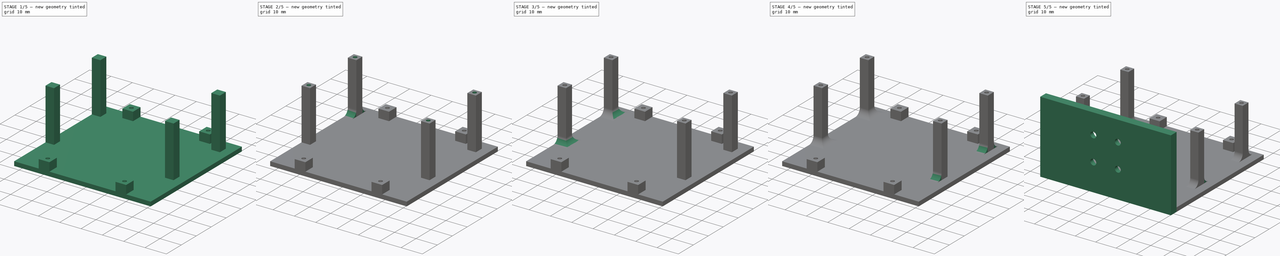
[diagram: build sequence overview — one tinted view per stage of 5, left to right]
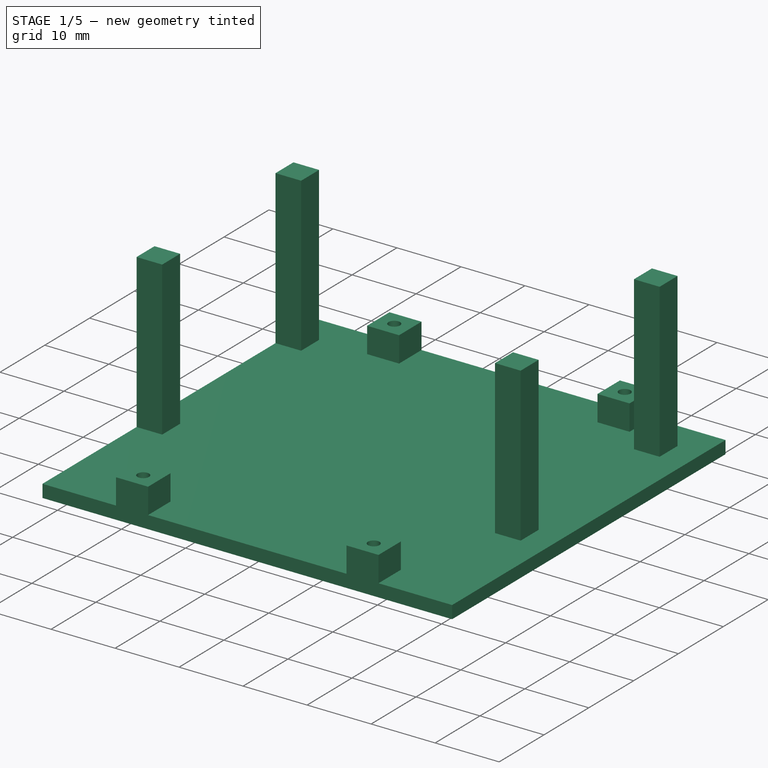
[diagram: stage 1 of 5 — iso view after this stage's code; geometry added in this stage tinted green]
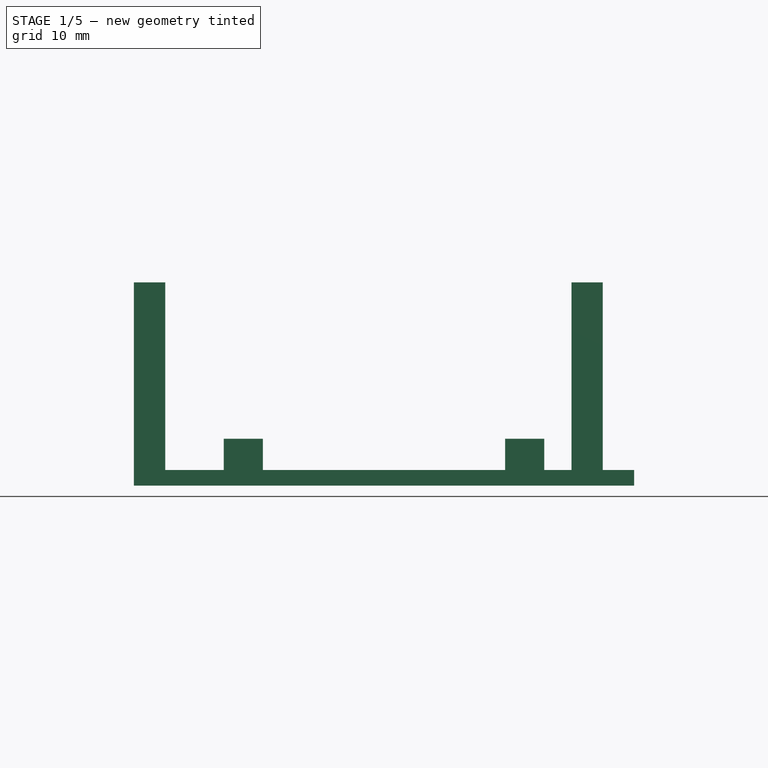
[diagram: stage 1 of 5 — front view after this stage's code; geometry added in this stage tinted green]
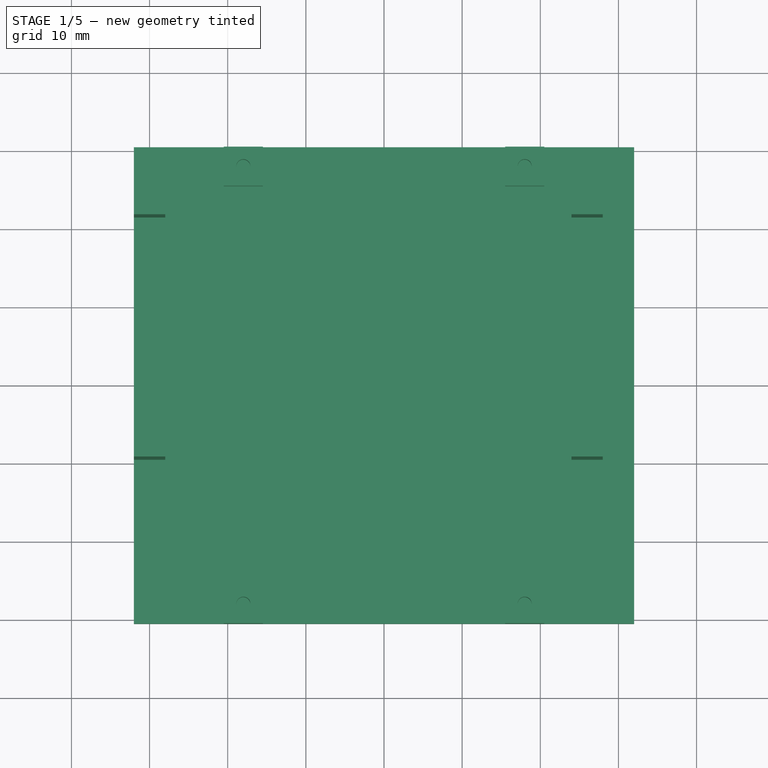
[diagram: stage 1 of 5 — top view after this stage's code; geometry added in this stage tinted green]
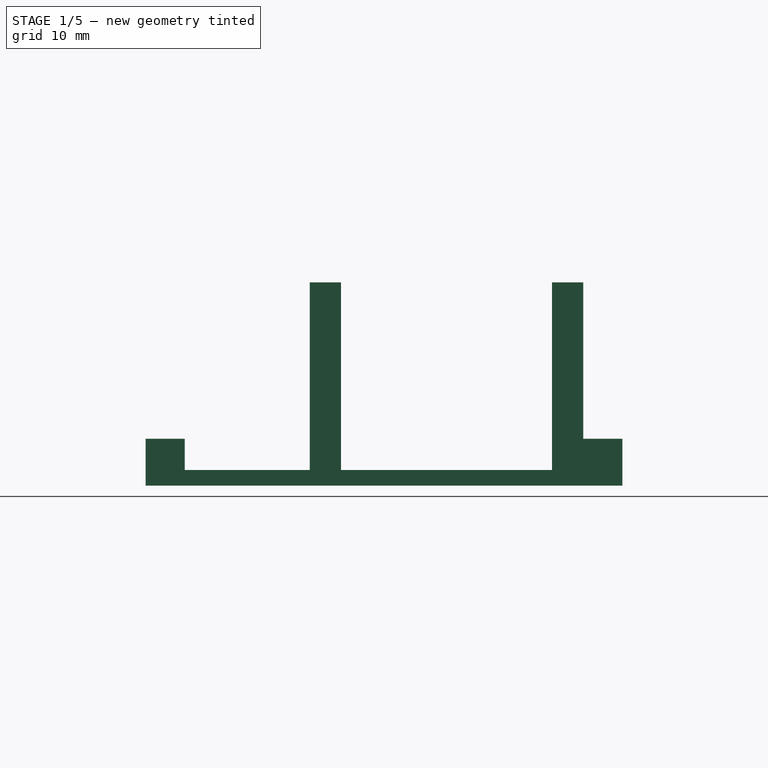
[diagram: stage 1 of 5 — right view after this stage's code; geometry added in this stage tinted green]
FCSTD DOCUMENT  (FreeCAD 0.20R29177 +426 (Git))
Label: camAndDisplayHolder
License: All rights reserved
LicenseURL: http://en.wikipedia.org/wiki/All_rights_reserved
objects: PartDesign::Fillet×10, Sketcher::SketchObject×8, PartDesign::Pad×4, PartDesign::Pocket×4, Spreadsheet::Sheet×1, PartDesign::Body×1
note: 45 computed .brp shape members not serialized (recipe doc carries the construction recipe); baked Part::Feature solids carry a one-line shape summary decoded from their .brp

FEATURE [Sketcher::SketchObject] Sketch
  FullyConstrained = true
  MapMode = 5
  Support = -> [XY_Plane]
  expr: Constraints[8] = Spreadsheet.faceHeight
  expr: Constraints[9] = Spreadsheet.faceWidth
  sketch-geometry (4):
    g0: LineSegment StartX=-32 StartY=30.5 StartZ=0 EndX=32 EndY=30.5 EndZ=0
    g1: LineSegment StartX=32 StartY=30.5 StartZ=0 EndX=32 EndY=-30.5 EndZ=0
    g2: LineSegment StartX=32 StartY=-30.5 StartZ=0 EndX=-32 EndY=-30.5 EndZ=0
    g3: LineSegment StartX=-32 StartY=-30.5 StartZ=0 EndX=-32 EndY=30.5 EndZ=0
  constraints (11):
    c: Coincident(g0,g1)
    c: Coincident(g1,g2)
    c: Coincident(g2,g3)
    c: Coincident(g3,g0)
    c: Horizontal(g0)
    c: Horizontal(g2)
    c: Vertical(g1)
    c: Vertical(g3)
    c: DistanceY(g1,g1) = 61
    c: DistanceX(g0,g0) = 64
    c: Symmetric(g0,g2,g-1)
FEATURE [PartDesign::Pad] Pad  label="basePlate"
  Direction = (0,0,1)
  Length = 2
  Length2 = 10
  Profile = -> Sketch
  ReferenceAxis = -> Sketch [N_Axis]
  Type = 0
FEATURE [Sketcher::SketchObject] Sketch001
  ExternalGeometry = -> [Pad]
  FullyConstrained = true
  MapMode = 5
  Placement = pos=(0,0,2) rot=(0,0,1;0rad)
  Support = -> [Pad]
  expr: Constraints[36] = Spreadsheet.standOffSide
  expr: Constraints[37] = Spreadsheet.standOffSide
  expr: Constraints[38] = Spreadsheet.standOffSide
  expr: Constraints[39] = Spreadsheet.standOffSide
  expr: Constraints[40] = Spreadsheet.standOffSide
  expr: Constraints[41] = Spreadsheet.standOffSide
  expr: Constraints[42] = Spreadsheet.standOffSide
  expr: Constraints[43] = Spreadsheet.standOffSide
  expr: Constraints[46] = Spreadsheet.espCarrierWidth - 2 * Spreadsheet.holeDistanceFromRim
  expr: Constraints[49] = Spreadsheet.espCarrierHeight - 2 * Spreadsheet.holeDistanceFromRim
  sketch-geometry (20):
    g0: LineSegment StartX=-20.5 StartY=30.5 StartZ=0 EndX=-15.5 EndY=30.5 EndZ=0
    g1: LineSegment StartX=-15.5 StartY=30.5 StartZ=0 EndX=-15.5 EndY=25.5 EndZ=0
    g2: LineSegment StartX=-15.5 StartY=25.5 StartZ=0 EndX=-20.5 EndY=25.5 EndZ=0
    g3: LineSegment StartX=-20.5 StartY=25.5 StartZ=0 EndX=-20.5 EndY=30.5 EndZ=0
    g4: LineSegment StartX=15.5 StartY=30.5 StartZ=0 EndX=20.5 EndY=30.5 EndZ=0
    g5: LineSegment StartX=20.5 StartY=30.5 StartZ=0 EndX=20.5 EndY=25.5 EndZ=0
    g6: LineSegment StartX=20.5 StartY=25.5 StartZ=0 EndX=15.5 EndY=25.5 EndZ=0
    g7: LineSegment StartX=15.5 StartY=25.5 StartZ=0 EndX=15.5 EndY=30.5 EndZ=0
    g8: LineSegment StartX=-20.5 StartY=-25.5 StartZ=0 EndX=-15.5 EndY=-25.5 EndZ=0
    g9: LineSegment StartX=-15.5 StartY=-25.5 StartZ=0 EndX=-15.5 EndY=-30.5 EndZ=0
    g10: LineSegment StartX=-15.5 StartY=-30.5 StartZ=0 EndX=-20.5 EndY=-30.5 EndZ=0
    g11: LineSegment StartX=-20.5 StartY=-30.5 StartZ=0 EndX=-20.5 EndY=-25.5 EndZ=0
    g12: LineSegment StartX=15.5 StartY=-25.5 StartZ=0 EndX=20.5 EndY=-25.5 EndZ=0
    g13: LineSegment StartX=20.5 StartY=-25.5 StartZ=0 EndX=20.5 EndY=-30.5 EndZ=0
    g14: LineSegment StartX=20.5 StartY=-30.5 StartZ=0 EndX=15.5 EndY=-30.5 EndZ=0
    g15: LineSegment StartX=15.5 StartY=-30.5 StartZ=0 EndX=15.5 EndY=-25.5 EndZ=0
    g16: GeomPoint X=-18 Y=28 Z=0
    g17: GeomPoint X=18 Y=28 Z=0
    g18: GeomPoint X=-18 Y=-28 Z=0
    g19: GeomPoint X=18 Y=-28 Z=0
  constraints (51):
    c: Coincident(g0,g1)
    c: Coincident(g1,g2)
    c: Coincident(g2,g3)
    c: Coincident(g3,g0)
    c: Horizontal(g0)
    c: Horizontal(g2)
    c: Vertical(g1)
    c: Vertical(g3)
    c: Coincident(g4,g5)
    c: Coincident(g5,g6)
    c: Coincident(g6,g7)
    c: Coincident(g7,g4)
    c: Horizontal(g4)
    c: Horizontal(g6)
    c: Vertical(g5)
    c: Vertical(g7)
    c: Coincident(g8,g9)
    c: Coincident(g9,g10)
    c: Coincident(g10,g11)
    c: Coincident(g11,g8)
    c: Horizontal(g8)
    c: Horizontal(g10)
    c: Vertical(g9)
    c: Vertical(g11)
    c: Coincident(g12,g13)
    c: Coincident(g13,g14)
    c: Coincident(g14,g15)
    c: Coincident(g15,g12)
    c: Horizontal(g12)
    c: Horizontal(g14)
    c: Vertical(g13)
    c: Vertical(g15)
    c: Symmetric(g0,g1,g16)
    c: Symmetric(g4,g5,g17)
    c: Symmetric(g8,g9,g18)
    c: Symmetric(g12,g13,g19)
    c: DistanceX(g0,g0) = 5
    c: DistanceY(g3,g3) = 5
    c: DistanceX(g6,g6) = 5
    c: DistanceY(g7,g7) = 5
    c: DistanceY(g11,g11) = 5
    c: DistanceX(g8,g8) = 5
    c: DistanceX(g12,g12) = 5
    c: DistanceY(g13,g13) = 5
    c: Horizontal(g10,g-4)
    c: Horizontal(g14,g-4)
    c: DistanceX(g18,g19) = 36
    c: Vertical(g16,g18)
    c: Vertical(g17,g19)
    c: DistanceY(g19,g17) = 56
    c: Symmetric(g16,g17,g-2)
FEATURE [PartDesign::Pad] Pad001  label="espStandOffs"
  BaseFeature = -> Pad
  Direction = (0,0,1)
  Length = 4
  Length2 = 10
  Profile = -> Sketch001
  ReferenceAxis = -> Sketch001 [N_Axis]
  Type = 0
  expr: Length = Spreadsheet.espStandoff
FEATURE [Spreadsheet::Sheet] Spreadsheet
  cells = A2=holeDiameter; B2(holeDiameter)=1.8; A3=holeDistanceFromRim; B3(holeDistanceFromRim)=2; A4=displayOverheadWidth; B4(displayOverheadWidth)=12; A5=displayWidth; B5(displayWidth)=60; A6=displayHeight; B6(displayHeight)=35; A7=displayStandOff; B7(displayStandOff)=20; C7=from espCarrierBoard; A8=displayStandOffSide; B8(displayStandOffSide)=4; A9=standOffSide; B9(standOffSide)=5; C9=add 2x 1,5mm to screw diameter; A10=espStandoff; B10(espStandoff)=4; A11=espCarrierWidth; B11(espCarrierWidth)=40; A12=espCarrierHeight; B12(espCarrierHeight)=60; A13=faceWidth; B13(faceWidth)==B11 + 2 * B4; C13=c; A14=faceHeight; B14(faceHeight)==B12 - 2 * B3 + B9; C14=c
FEATURE [Sketcher::SketchObject] Sketch002
  ExternalGeometry = -> [Pad001]
  FullyConstrained = true
  MapMode = 5
  Placement = pos=(0,0,6) rot=(0,0,1;0rad)
  Support = -> [Pad001]
  expr: Constraints[7] = Spreadsheet.holeDiameter
  sketch-geometry (4):
    g0: Circle CenterX=-18 CenterY=-28 CenterZ=0 NormalX=0 NormalY=0 NormalZ=1 AngleXU=0 Radius=0.9
    g1: Circle CenterX=18 CenterY=-28 CenterZ=0 NormalX=0 NormalY=0 NormalZ=1 AngleXU=0 Radius=0.9
    g2: Circle CenterX=18 CenterY=28 CenterZ=0 NormalX=0 NormalY=0 NormalZ=1 AngleXU=0 Radius=0.9
    g3: Circle CenterX=-18 CenterY=28 CenterZ=0 NormalX=0 NormalY=0 NormalZ=1 AngleXU=0 Radius=0.9
  constraints (8):
    c: Symmetric(g-3,g-4,g3)
    c: Symmetric(g-5,g-6,g2)
    c: Symmetric(g-7,g-8,g0)
    c: Symmetric(g-9,g-10,g1)
    c: Equal(g3,g2)
    c: Equal(g3,g0)
    c: Equal(g3,g1)
    c: Diameter(g3) = 1.8
FEATURE [PartDesign::Pocket] Pocket
  BaseFeature = -> Pad001
  Direction = (0,0,-1)
  Length = 4
  Length2 = 5
  Profile = -> Sketch002
  ReferenceAxis = -> Sketch002 [N_Axis]
  Type = 0
  expr: Length = 4
FEATURE [Sketcher::SketchObject] Sketch003
  ExternalGeometry = -> [Pocket]
  FullyConstrained = true
  MapMode = 5
  Placement = pos=(0,0,2) rot=(0,0,1;0rad)
  Support = -> [Pocket]
  expr: Constraints[32] = Spreadsheet.displayStandOffSide
  expr: Constraints[33] = Spreadsheet.displayStandOffSide
  expr: Constraints[34] = Spreadsheet.displayStandOffSide
  expr: Constraints[35] = Spreadsheet.displayStandOffSide
  expr: Constraints[36] = Spreadsheet.displayStandOffSide
  expr: Constraints[37] = Spreadsheet.displayStandOffSide
  expr: Constraints[38] = Spreadsheet.displayStandOffSide
  expr: Constraints[39] = Spreadsheet.displayStandOffSide
  expr: Constraints[48] = Spreadsheet.displayWidth - 2 * Spreadsheet.holeDistanceFromRim
  expr: Constraints[49] = Spreadsheet.displayHeight - 2 * Spreadsheet.holeDistanceFromRim
  sketch-geometry (20):
    g0: LineSegment StartX=-32 StartY=25.5 StartZ=0 EndX=-28 EndY=25.5 EndZ=0
    g1: LineSegment StartX=-28 StartY=25.5 StartZ=0 EndX=-28 EndY=21.5 EndZ=0
    g2: LineSegment StartX=-28 StartY=21.5 StartZ=0 EndX=-32 EndY=21.5 EndZ=0
    g3: LineSegment StartX=-32 StartY=21.5 StartZ=0 EndX=-32 EndY=25.5 EndZ=0
    g4: LineSegment StartX=-32 StartY=-5.5 StartZ=0 EndX=-28 EndY=-5.5 EndZ=0
    g5: LineSegment StartX=-28 StartY=-5.5 StartZ=0 EndX=-28 EndY=-9.5 EndZ=0
    g6: LineSegment StartX=-28 StartY=-9.5 StartZ=0 EndX=-32 EndY=-9.5 EndZ=0
    g7: LineSegment StartX=-32 StartY=-9.5 StartZ=0 EndX=-32 EndY=-5.5 EndZ=0
    g8: LineSegment StartX=24 StartY=25.5 StartZ=0 EndX=28 EndY=25.5 EndZ=0
    g9: LineSegment StartX=28 StartY=25.5 StartZ=0 EndX=28 EndY=21.5 EndZ=0
    g10: LineSegment StartX=28 StartY=21.5 StartZ=0 EndX=24 EndY=21.5 EndZ=0
    g11: LineSegment StartX=24 StartY=21.5 StartZ=0 EndX=24 EndY=25.5 EndZ=0
    g12: LineSegment StartX=24 StartY=-5.5 StartZ=0 EndX=28 EndY=-5.5 EndZ=0
    g13: LineSegment StartX=28 StartY=-5.5 StartZ=0 EndX=28 EndY=-9.5 EndZ=0
    g14: LineSegment StartX=28 StartY=-9.5 StartZ=0 EndX=24 EndY=-9.5 EndZ=0
    g15: LineSegment StartX=24 StartY=-9.5 StartZ=0 EndX=24 EndY=-5.5 EndZ=0
    g16: GeomPoint X=-30 Y=23.5 Z=0
    g17: GeomPoint X=26 Y=23.5 Z=0
    g18: GeomPoint X=26 Y=-7.5 Z=0
    g19: GeomPoint X=-30 Y=-7.5 Z=0
  constraints (52):
    c: Coincident(g0,g1)
    c: Coincident(g1,g2)
    c: Coincident(g2,g3)
    c: Coincident(g3,g0)
    c: Horizontal(g0)
    c: Horizontal(g2)
    c: Vertical(g1)
    c: Vertical(g3)
    c: Coincident(g4,g5)
    c: Coincident(g5,g6)
    c: Coincident(g6,g7)
    c: Coincident(g7,g4)
    c: Horizontal(g4)
    c: Horizontal(g6)
    c: Vertical(g5)
    c: Vertical(g7)
    c: Coincident(g8,g9)
    c: Coincident(g9,g10)
    c: Coincident(g10,g11)
    c: Coincident(g11,g8)
    c: Horizontal(g8)
    c: Horizontal(g10)
    c: Vertical(g9)
    c: Vertical(g11)
    c: Coincident(g12,g13)
    c: Coincident(g13,g14)
    c: Coincident(g14,g15)
    c: Coincident(g15,g12)
    c: Horizontal(g12)
    c: Horizontal(g14)
    c: Vertical(g13)
    c: Vertical(g15)
    c: DistanceX(g0,g0) = 4
    c: DistanceY(g1,g1) = 4
    c: DistanceX(g4,g4) = 4
    c: DistanceY(g5,g5) = 4
    c: DistanceX(g8,g8) = 4
    c: DistanceY(g11,g11) = 4
    c: DistanceX(g12,g12) = 4
    c: DistanceY(g15,g15) = 4
    c: Symmetric(g0,g1,g16)
    c: Symmetric(g8,g9,g17)
    c: Symmetric(g4,g5,g19)
    c: Symmetric(g12,g13,g18)
    c: Horizontal(g17,g16)
    c: Vertical(g16,g19)
    c: Vertical(g17,g18)
    c: Horizontal(g18,g19)
    c: DistanceX(g16,g17) = 56
    c: DistanceY(g19,g16) = 31
    c: Vertical(g0,g-3)
    c: Horizontal(g0,g-4)
FEATURE [PartDesign::Pad] Pad002
  BaseFeature = -> Pocket
  Direction = (0,0,1)
  Length = 24
  Length2 = 10
  Profile = -> Sketch003
  ReferenceAxis = -> Sketch003 [N_Axis]
  Type = 0
  expr: Length = Spreadsheet.displayStandOff + Spreadsheet.espStandoff
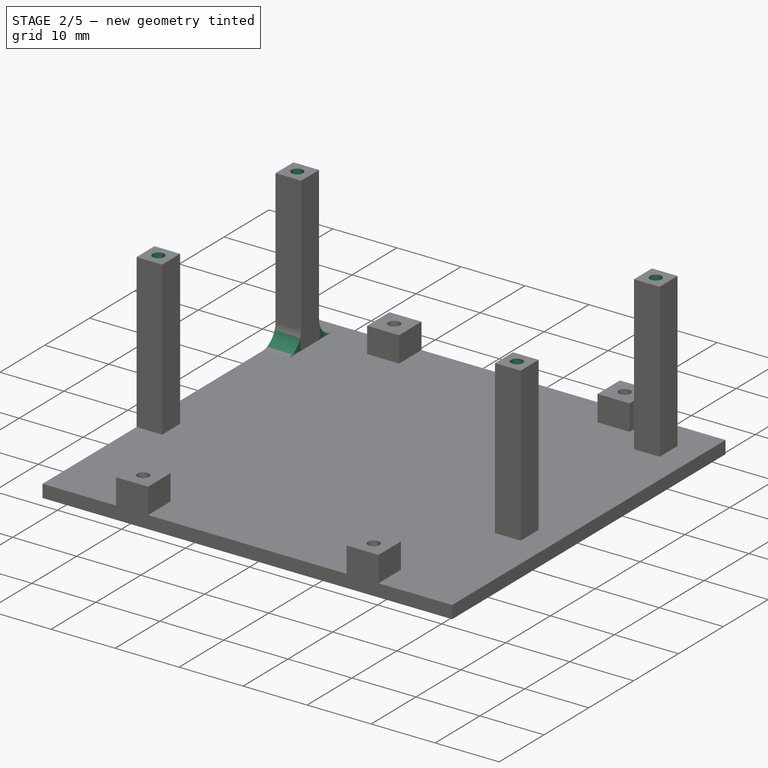
[diagram: stage 2 of 5 — iso view after this stage's code; geometry added in this stage tinted green]
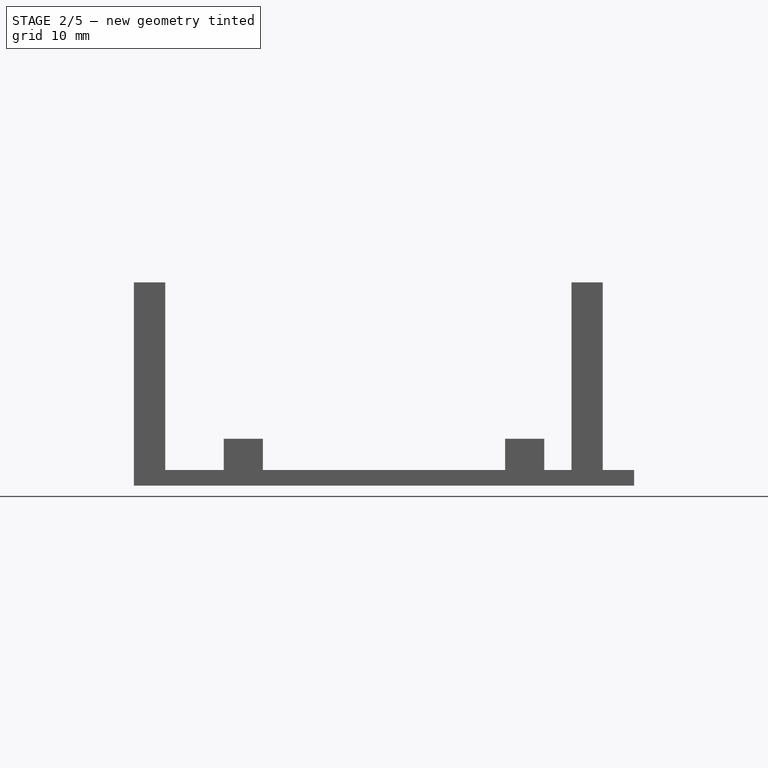
[diagram: stage 2 of 5 — front view after this stage's code; geometry added in this stage tinted green]
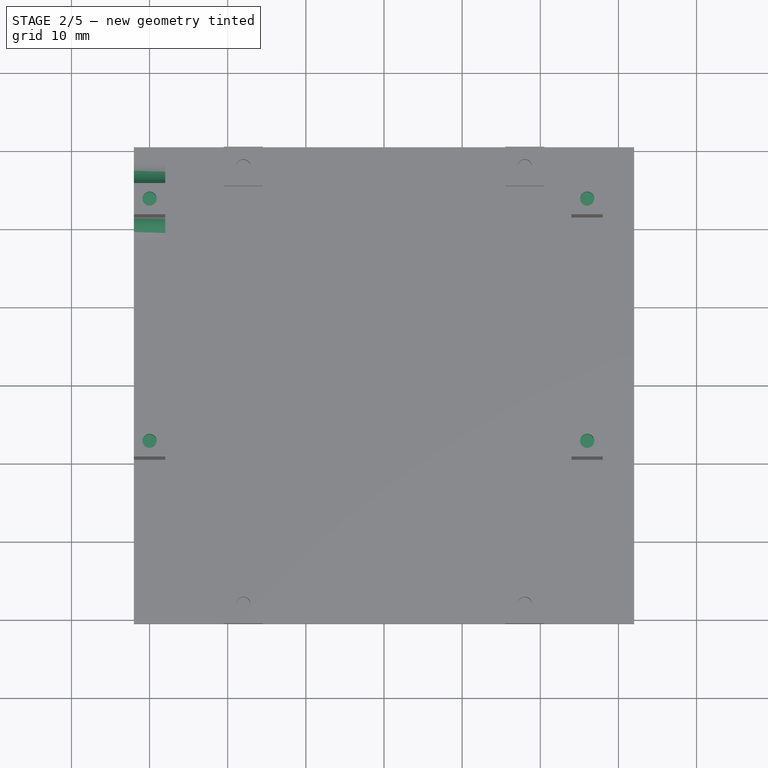
[diagram: stage 2 of 5 — top view after this stage's code; geometry added in this stage tinted green]
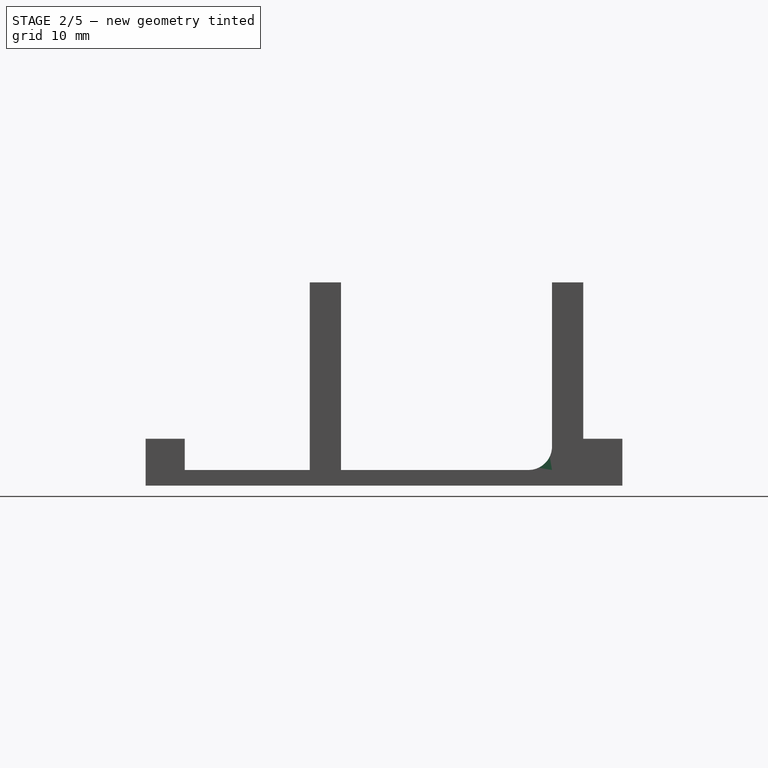
[diagram: stage 2 of 5 — right view after this stage's code; geometry added in this stage tinted green]
FEATURE [Sketcher::SketchObject] Sketch004
  ExternalGeometry = -> [Pad002]
  FullyConstrained = true
  MapMode = 5
  Placement = pos=(0,0,26) rot=(0,0,1;0rad)
  Support = -> [Pad002]
  expr: Constraints[7] = Spreadsheet.holeDiameter
  sketch-geometry (4):
    g0: Circle CenterX=-30 CenterY=23.5 CenterZ=0 NormalX=0 NormalY=0 NormalZ=1 AngleXU=0 Radius=0.9
    g1: Circle CenterX=26 CenterY=23.5 CenterZ=0 NormalX=0 NormalY=0 NormalZ=1 AngleXU=0 Radius=0.9
    g2: Circle CenterX=26 CenterY=-7.5 CenterZ=0 NormalX=0 NormalY=0 NormalZ=1 AngleXU=0 Radius=0.9
    g3: Circle CenterX=-30 CenterY=-7.5 CenterZ=0 NormalX=0 NormalY=0 NormalZ=1 AngleXU=0 Radius=0.9
  constraints (8):
    c: Symmetric(g-3,g-4,g0)
    c: Symmetric(g-5,g-6,g1)
    c: Symmetric(g-9,g-10,g3)
    c: Symmetric(g-7,g-8,g2)
    c: Equal(g0,g1)
    c: Equal(g0,g2)
    c: Equal(g0,g3)
    c: Diameter(g0) = 1.8
FEATURE [PartDesign::Pocket] Pocket001
  BaseFeature = -> Pad002
  Direction = (0,0,-1)
  Length = 4
  Length2 = 5
  Profile = -> Sketch004
  ReferenceAxis = -> Sketch004 [N_Axis]
  Type = 0
FEATURE [PartDesign::Fillet] Fillet
  Base = -> Pocket001 [Edge40]
  BaseFeature = -> Pocket001
  Radius = 3
  SupportTransform = false
  UseAllEdges = false
FEATURE [PartDesign::Fillet] Fillet001
  Base = -> Fillet [Edge16]
  BaseFeature = -> Fillet
  Radius = 3
  SupportTransform = false
  UseAllEdges = false
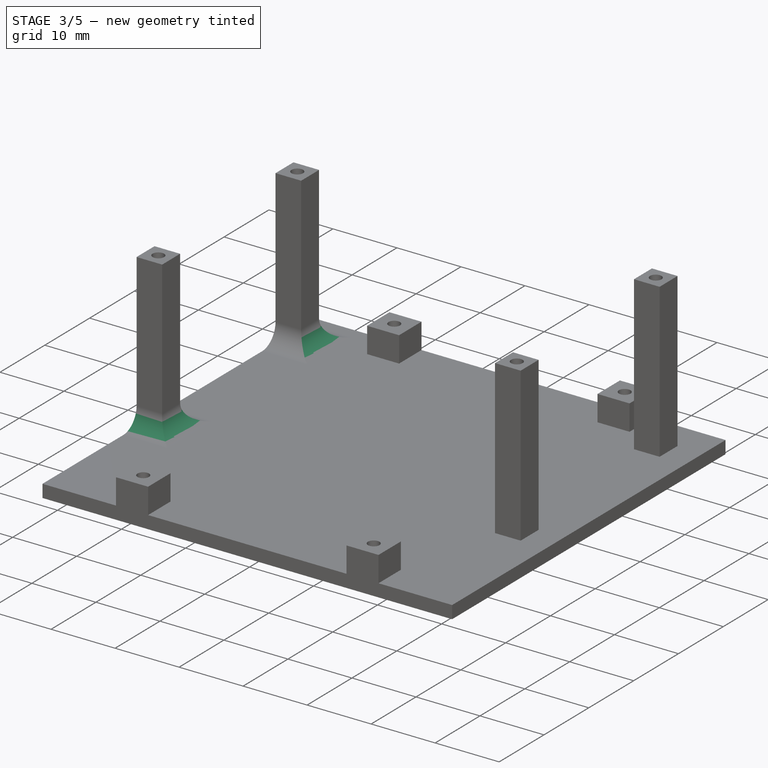
[diagram: stage 3 of 5 — iso view after this stage's code; geometry added in this stage tinted green]
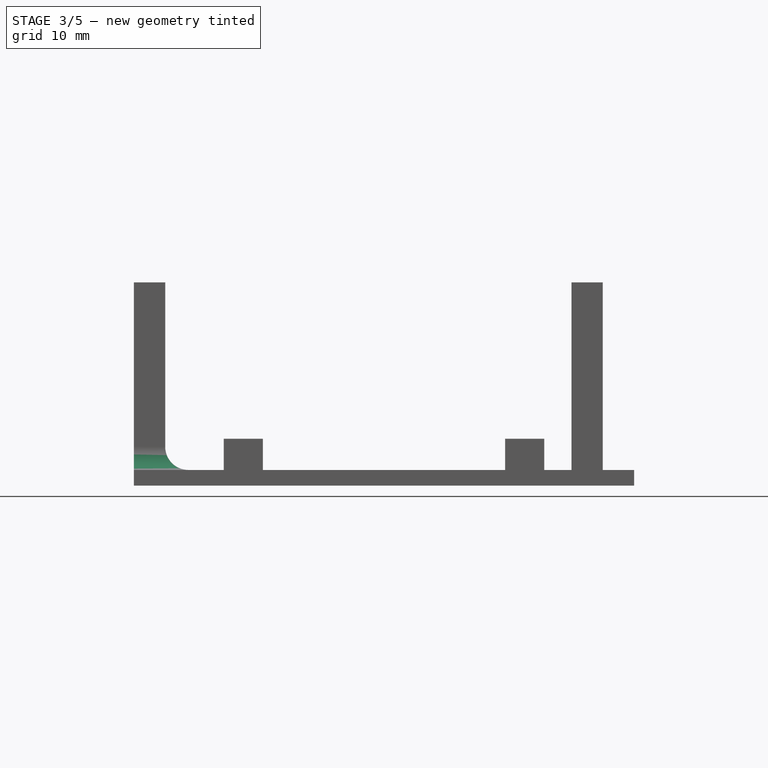
[diagram: stage 3 of 5 — front view after this stage's code; geometry added in this stage tinted green]
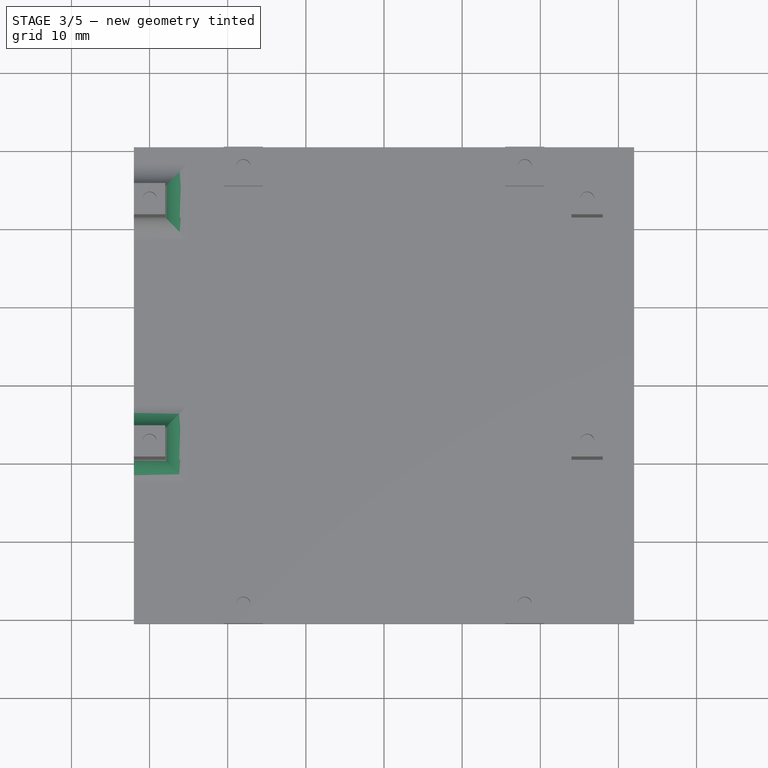
[diagram: stage 3 of 5 — top view after this stage's code; geometry added in this stage tinted green]
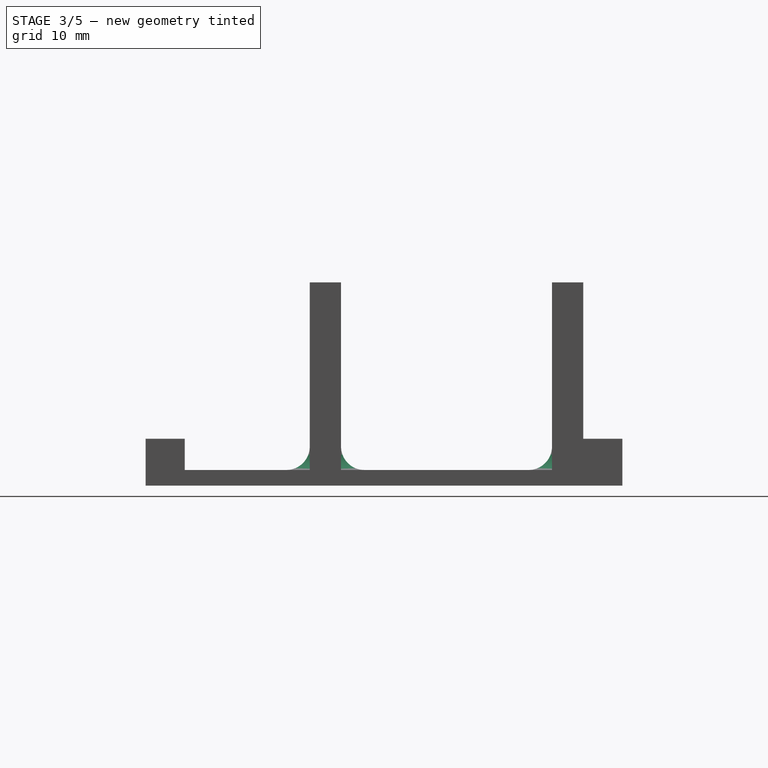
[diagram: stage 3 of 5 — right view after this stage's code; geometry added in this stage tinted green]
FEATURE [PartDesign::Fillet] Fillet002
  Base = -> Fillet001 [Edge15]
  BaseFeature = -> Fillet001
  Radius = 3
  SupportTransform = false
  UseAllEdges = false
FEATURE [PartDesign::Fillet] Fillet003
  Base = -> Fillet002 [Edge19]
  BaseFeature = -> Fillet002
  Radius = 3
  SupportTransform = false
  UseAllEdges = false
FEATURE [PartDesign::Fillet] Fillet004
  Base = -> Fillet003 [Edge8]
  BaseFeature = -> Fillet003
  Radius = 3
  SupportTransform = false
  UseAllEdges = false
FEATURE [PartDesign::Fillet] Fillet005
  Base = -> Fillet004 [Edge6]
  BaseFeature = -> Fillet004
  Radius = 2.9
  SupportTransform = false
  UseAllEdges = false
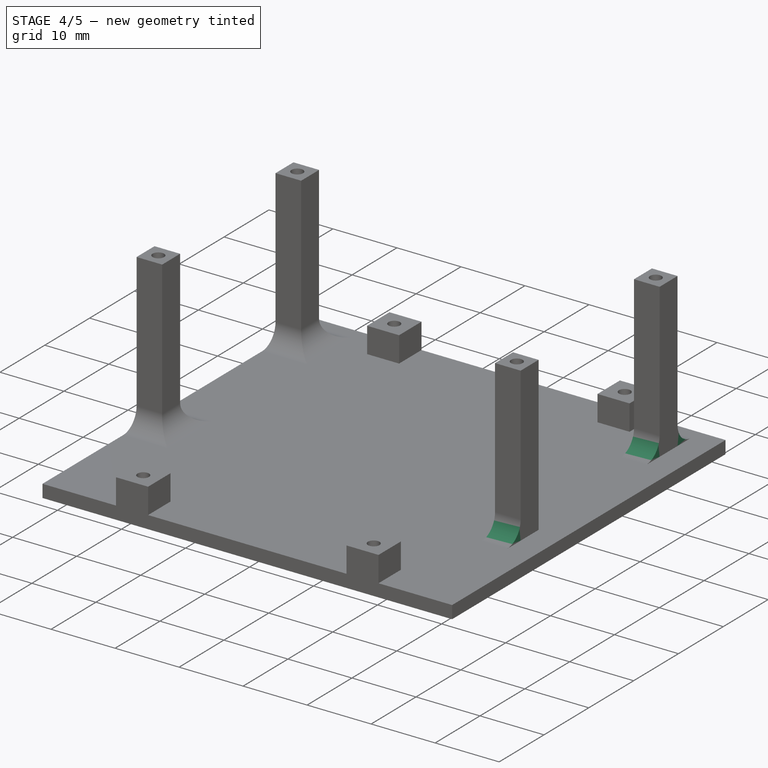
[diagram: stage 4 of 5 — iso view after this stage's code; geometry added in this stage tinted green]
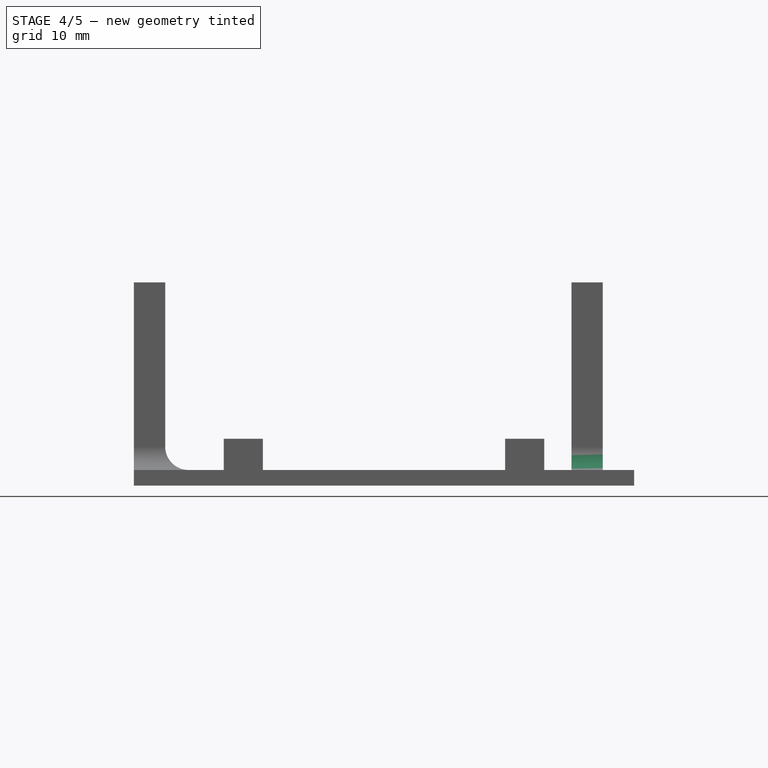
[diagram: stage 4 of 5 — front view after this stage's code; geometry added in this stage tinted green]
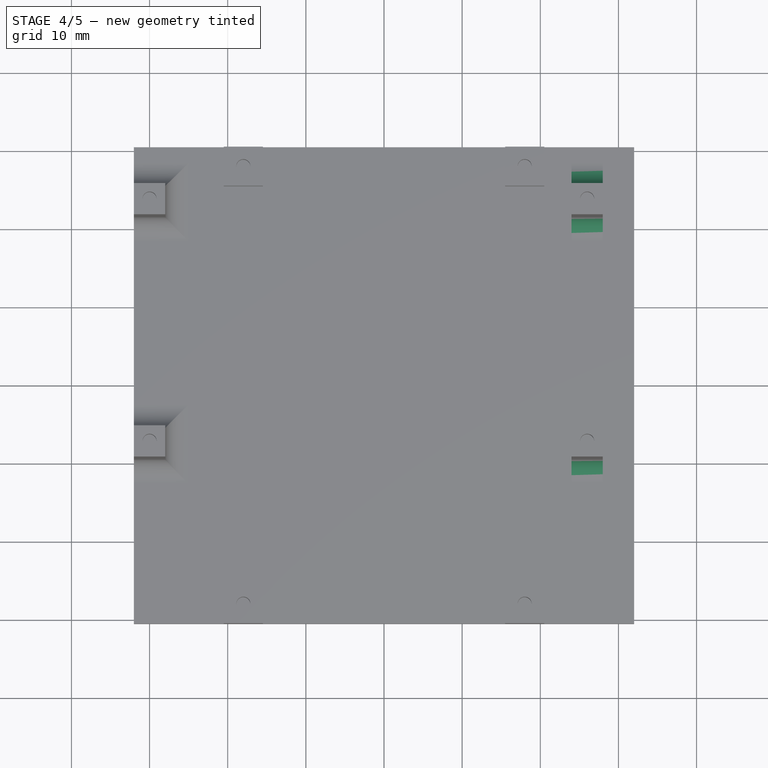
[diagram: stage 4 of 5 — top view after this stage's code; geometry added in this stage tinted green]
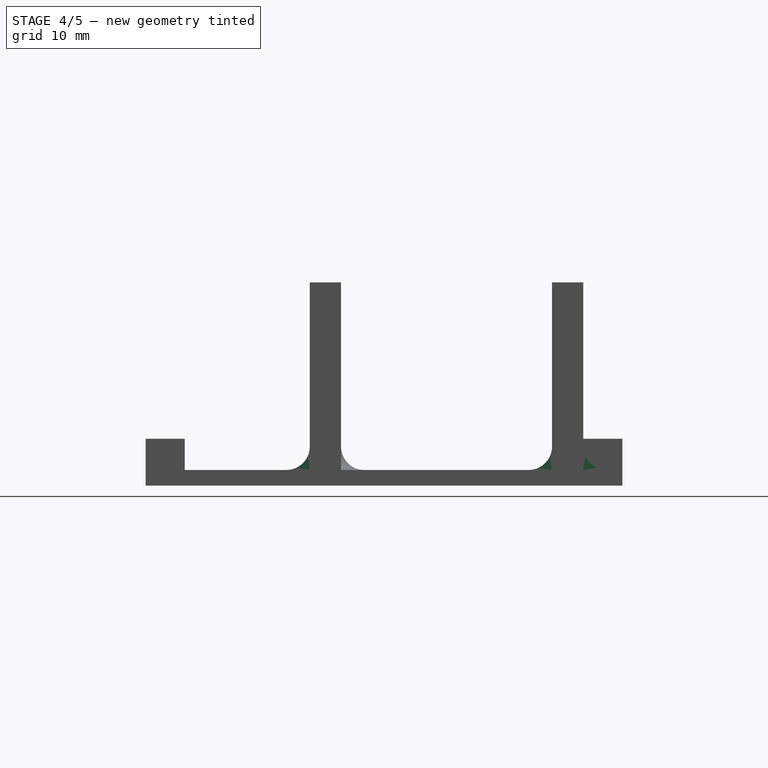
[diagram: stage 4 of 5 — right view after this stage's code; geometry added in this stage tinted green]
FEATURE [PartDesign::Fillet] Fillet006
  Base = -> Fillet005 [Edge44]
  BaseFeature = -> Fillet005
  Radius = 3
  SupportTransform = false
  UseAllEdges = false
FEATURE [PartDesign::Fillet] Fillet007
  Base = -> Fillet006 [Edge4]
  BaseFeature = -> Fillet006
  Radius = 3
  SupportTransform = false
  UseAllEdges = false
FEATURE [PartDesign::Fillet] Fillet008
  Base = -> Fillet007 [Edge46]
  BaseFeature = -> Fillet007
  Radius = 3
  SupportTransform = false
  UseAllEdges = false
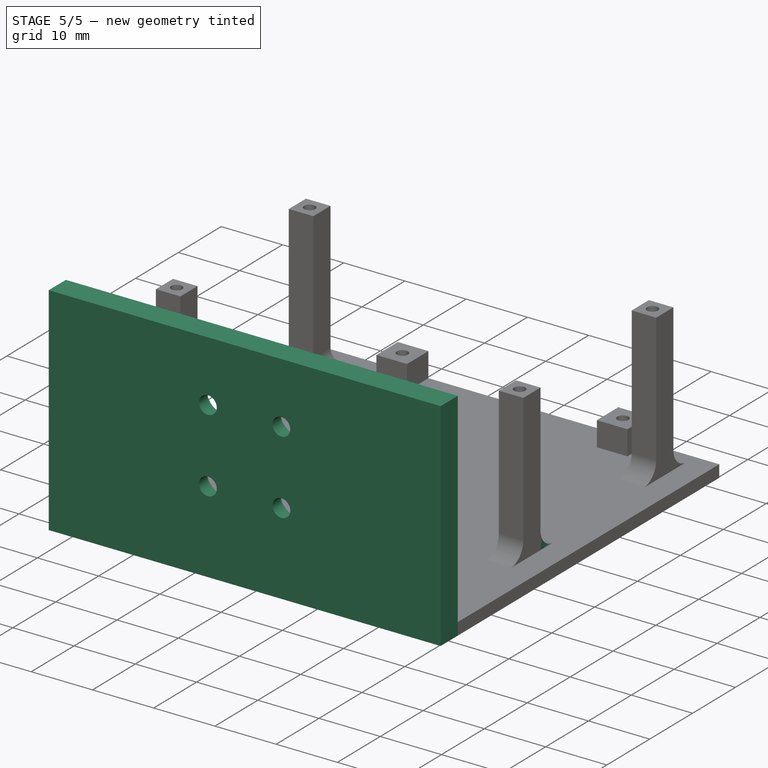
[diagram: stage 5 of 5 — iso view after this stage's code; geometry added in this stage tinted green]
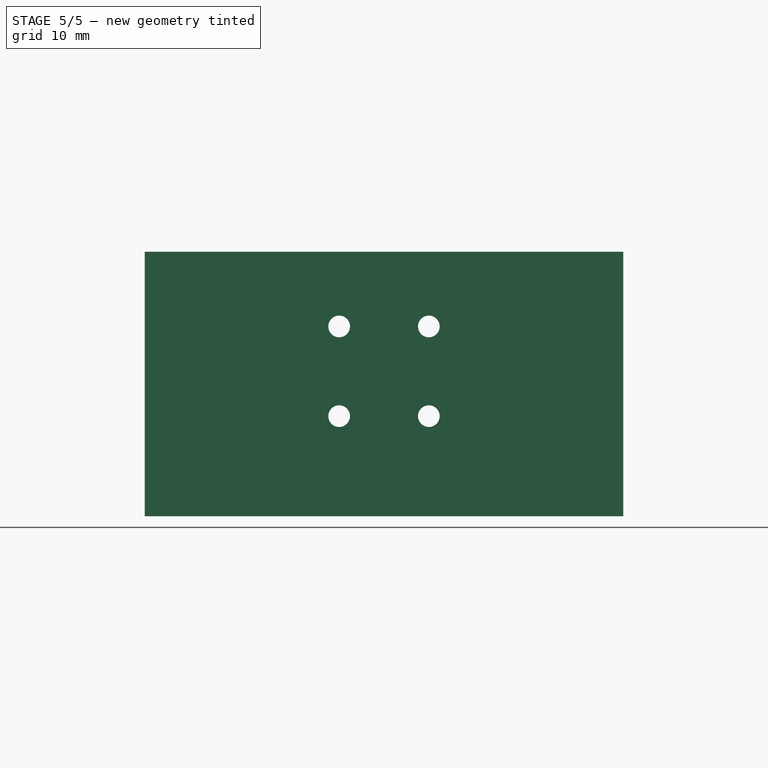
[diagram: stage 5 of 5 — front view after this stage's code; geometry added in this stage tinted green]
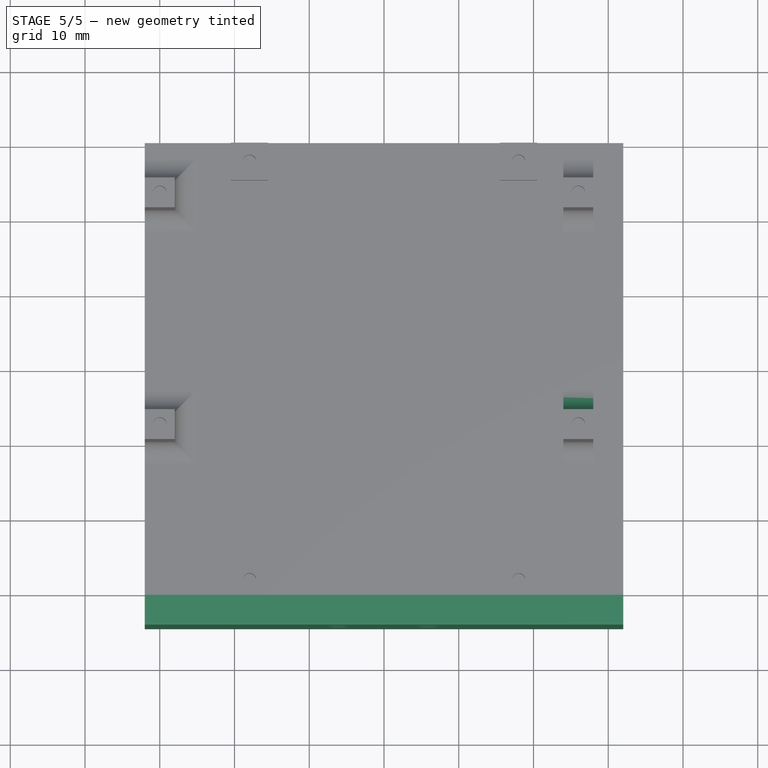
[diagram: stage 5 of 5 — top view after this stage's code; geometry added in this stage tinted green]
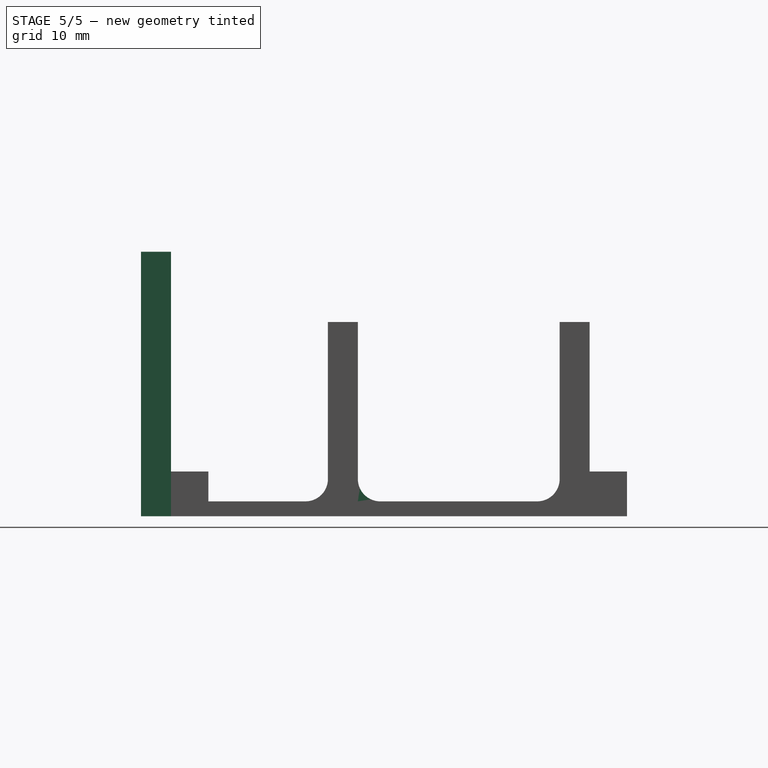
[diagram: stage 5 of 5 — right view after this stage's code; geometry added in this stage tinted green]
FEATURE [PartDesign::Fillet] Fillet009
  Base = -> Fillet008 [Edge4]
  BaseFeature = -> Fillet008
  Radius = 3
  SupportTransform = false
  UseAllEdges = false
FEATURE [Sketcher::SketchObject] Sketch005
  ExternalGeometry = -> [Fillet009]
  FullyConstrained = true
  MapMode = 5
  Placement = pos=(0,-30.5,0) rot=(1,0,0;1.5708rad)
  Support = -> [Fillet009]
  sketch-geometry (4):
    g0: LineSegment StartX=-32 StartY=0 StartZ=0 EndX=32 EndY=0 EndZ=0
    g1: LineSegment StartX=32 StartY=0 StartZ=0 EndX=32 EndY=35.4 EndZ=0
    g2: LineSegment StartX=32 StartY=35.4 StartZ=0 EndX=-32 EndY=35.4 EndZ=0
    g3: LineSegment StartX=-32 StartY=35.4 StartZ=0 EndX=-32 EndY=0 EndZ=0
  constraints (10):
    c: Coincident(g0,g1)
    c: Coincident(g1,g2)
    c: Coincident(g2,g3)
    c: Coincident(g3,g0)
    c: Horizontal(g2)
    c: Vertical(g1)
    c: Vertical(g3)
    c: Coincident(g0,g-3)
    c: Coincident(g0,g-4)
    c: DistanceY(g0,g1) = 35.4
FEATURE [PartDesign::Pad] Pad003
  BaseFeature = -> Fillet009
  Direction = (0,-1,2e-16)
  Length = 4
  Length2 = 10
  Profile = -> Sketch005
  ReferenceAxis = -> Sketch005 [N_Axis]
  Type = 0
FEATURE [Sketcher::SketchObject] Sketch006
  ExternalGeometry = -> [Pad003]
  FullyConstrained = true
  MapMode = 5
  Placement = pos=(0,-30.5,6.1e-15) rot=(0,0.707107,0.707107;3.14159rad)
  Support = -> [Pad003]
  sketch-geometry (5):
    g0: Circle CenterX=6 CenterY=13.4 CenterZ=0 NormalX=0 NormalY=0 NormalZ=1 AngleXU=0 Radius=3
    g1: Circle CenterX=-6 CenterY=13.4 CenterZ=0 NormalX=0 NormalY=0 NormalZ=1 AngleXU=0 Radius=3
    g2: Circle CenterX=6 CenterY=25.4 CenterZ=0 NormalX=0 NormalY=0 NormalZ=1 AngleXU=0 Radius=3
    g3: Circle CenterX=-6 CenterY=25.4 CenterZ=0 NormalX=0 NormalY=0 NormalZ=1 AngleXU=0 Radius=3
    g4: GeomPoint X=0 Y=19.4 Z=0
  constraints (13):
    c: Vertical(g0,g2)
    c: Horizontal(g0,g1)
    c: Vertical(g1,g3)
    c: Horizontal(g2,g3)
    c: Symmetric(g0,g3,g4)
    c: PointOnObject(g4,g-2)
    c: DistanceX(g1,g0) = 12
    c: DistanceY(g0,g2) = 12
    c: Equal(g0,g1)
    c: Equal(g0,g3)
    c: Equal(g0,g2)
    c: Diameter(g0) = 6
    c: DistanceY(g3,g-4) = 10
FEATURE [PartDesign::Pocket] Pocket002
  BaseFeature = -> Pad003
  Direction = (0,-1,2e-16)
  Length = 2
  Length2 = 5
  Profile = -> Sketch006
  ReferenceAxis = -> Sketch006 [N_Axis]
  Type = 0
FEATURE [Sketcher::SketchObject] Sketch007
  ExternalGeometry = -> [Pocket002]
  FullyConstrained = true
  MapMode = 5
  Placement = pos=(0,-34.5,6.9e-15) rot=(1,0,0;1.5708rad)
  Support = -> [Pocket002]
  sketch-geometry (5):
    g0: Circle CenterX=-6 CenterY=25.4 CenterZ=0 NormalX=0 NormalY=0 NormalZ=1 AngleXU=0 Radius=1.45
    g1: Circle CenterX=6 CenterY=25.4 CenterZ=0 NormalX=0 NormalY=0 NormalZ=1 AngleXU=0 Radius=1.45
    g2: Circle CenterX=-6 CenterY=13.4 CenterZ=0 NormalX=0 NormalY=0 NormalZ=1 AngleXU=0 Radius=1.45
    g3: Circle CenterX=6 CenterY=13.4 CenterZ=0 NormalX=0 NormalY=0 NormalZ=1 AngleXU=0 Radius=1.45
    g4: GeomPoint X=0 Y=19.4 Z=0
  constraints (13):
    c: Vertical(g0,g2)
    c: Horizontal(g0,g1)
    c: Vertical(g1,g3)
    c: Horizontal(g2,g3)
    c: Equal(g1,g0)
    c: Equal(g1,g2)
    c: Equal(g1,g3)
    c: Diameter(g1) = 2.9
    c: Symmetric(g0,g3,g4)
    c: PointOnObject(g4,g-2)
    c: DistanceX(g0,g1) = 12
    c: DistanceY(g2,g0) = 12
    c: DistanceY(g0,g-3) = 10
FEATURE [PartDesign::Pocket] Pocket003
  BaseFeature = -> Pocket002
  Direction = (0,1,-2e-16)
  Length = 5
  Length2 = 5
  Profile = -> Sketch007
  ReferenceAxis = -> Sketch007 [N_Axis]
  Type = 0
FEATURE [PartDesign::Body] Body
  Group = -> [Sketch,Pad,Sketch001,Pad001,Sketch002,Pocket,Sketch003,Pad002,Sketch004,Pocket001,Fillet,Fillet001,Fillet002,Fillet003,Fillet004,Fillet005,Fillet006,Fillet007,Fillet008,Fillet009,Sketch005,Pad003,Sketch006,Pocket002,Sketch007,Pocket003]
  Origin = -> Origin
  Tip = -> Pocket003
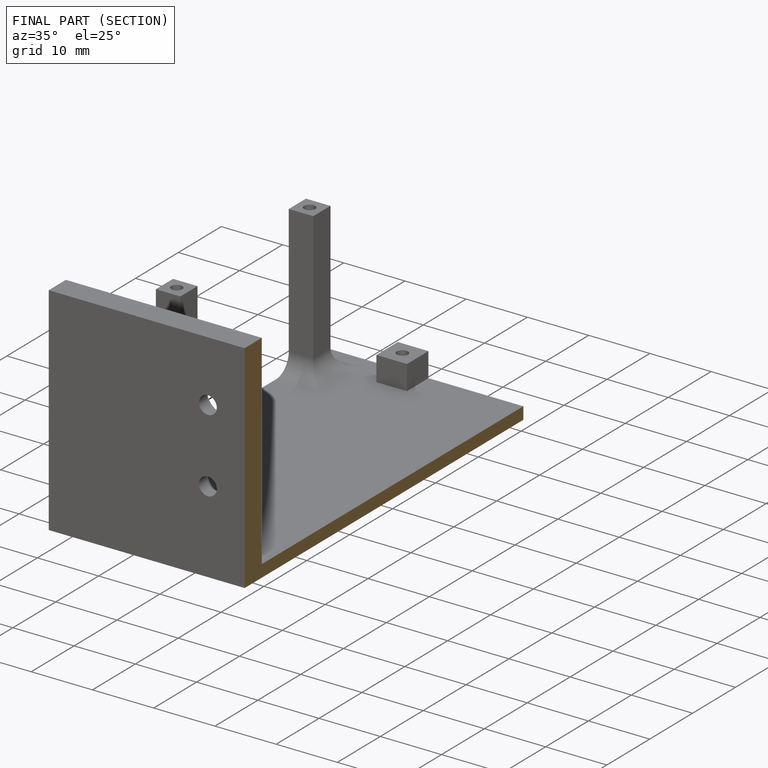
[diagram: finished part — half-section view (interior)]
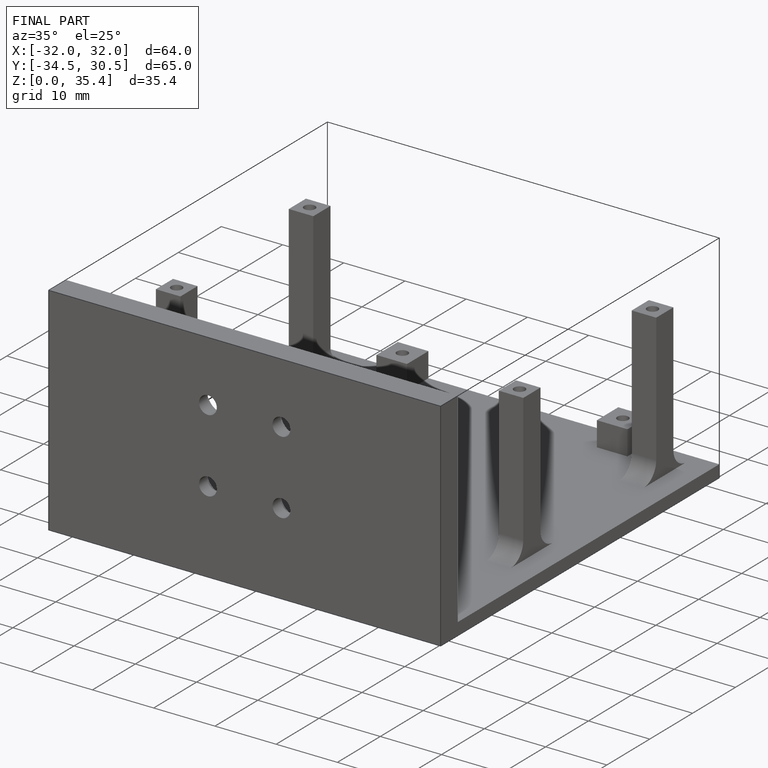
[diagram: finished part — iso view with bounding-box wireframe]
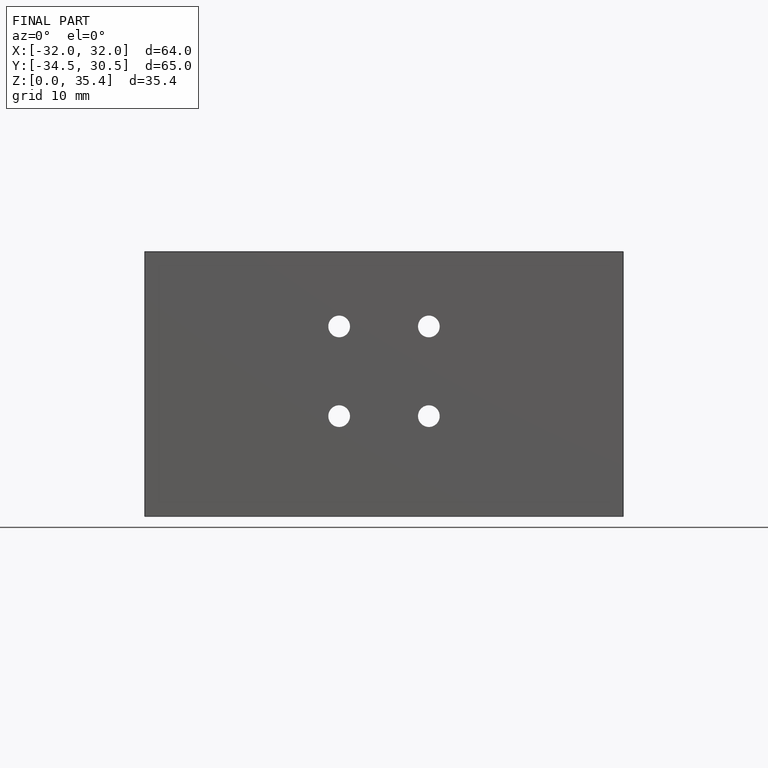
[diagram: finished part — front view with bounding-box wireframe]
